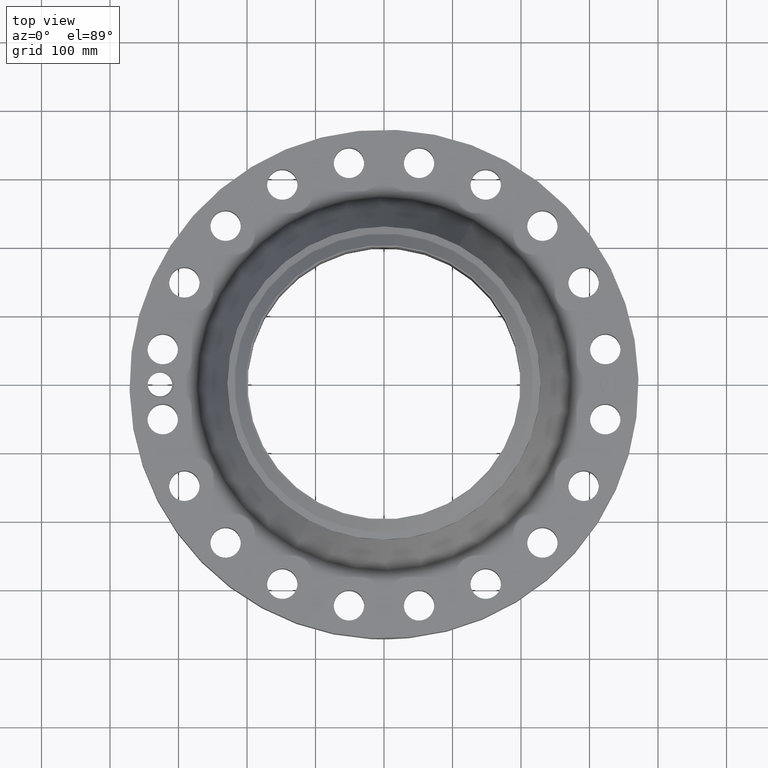
[diagram: clean part render]
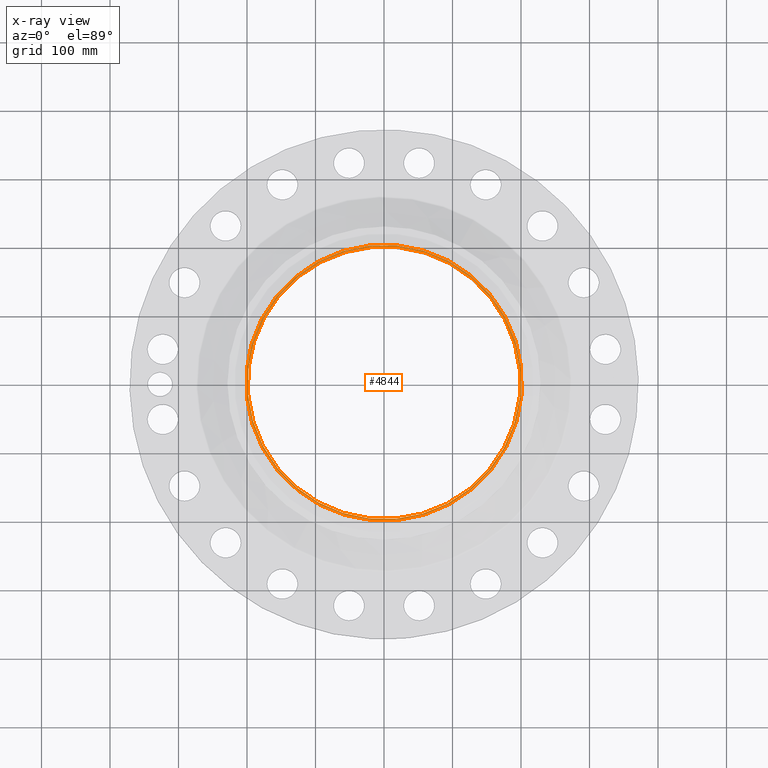
[diagram: x-ray — body ghosted, one internal face saturated and labeled with its STEP entity id]
A machine part, top view, then the same camera in x-ray: the body is ghosted and one INTERNAL B-rep face — a face not visible from any outside direction — is saturated and labeled: STEP entity #4844.
In plain terms, the highlighted planar face has unit normal (0, 0, -1).
Its self-contained STEP definition (entity closure, byte-faithful):
#3642=AXIS2_PLACEMENT_3D('Circle Axis2P3D',#3640,#3641,$) ;
#3710=AXIS2_PLACEMENT_3D('Circle Axis2P3D',#3708,#3709,$) ;
#4820=AXIS2_PLACEMENT_3D('Plane Axis2P3D',#4817,#4818,#4819) ;
#4824=AXIS2_PLACEMENT_3D('Circle Axis2P3D',#4822,#4823,$) ;
#4833=AXIS2_PLACEMENT_3D('Circle Axis2P3D',#4831,#4832,$) ;
#3640=CARTESIAN_POINT('Axis2P3D Location',(0.,0.,7.50000000003)) ;
#3644=CARTESIAN_POINT('Vertex',(3.76061392483,6.8837576155,7.50000000003)) ;
#3646=CARTESIAN_POINT('Vertex',(-3.76061392483,-6.8837576155,7.50000000003)) ;
#3708=CARTESIAN_POINT('Axis2P3D Location',(0.,0.,7.50000000003)) ;
#4817=CARTESIAN_POINT('Axis2P3D Location',(0.,9.00000000004,7.50000000003)) ;
#4822=CARTESIAN_POINT('Axis2P3D Location',(0.,0.,7.50000000003)) ;
#4826=CARTESIAN_POINT('Vertex',(3.79836396724,-6.95285860462,7.50000000003)) ;
#4828=CARTESIAN_POINT('Vertex',(-3.79836396724,6.95285860462,7.50000000003)) ;
#4831=CARTESIAN_POINT('Axis2P3D Location',(0.,0.,7.50000000003)) ;
#3641=DIRECTION('Axis2P3D Direction',(0.,0.,-0.0393700787402)) ;
#3709=DIRECTION('Axis2P3D Direction',(0.,0.,-0.0393700787402)) ;
#4818=DIRECTION('Axis2P3D Direction',(0.,0.,-0.0393700787402)) ;
#4819=DIRECTION('Axis2P3D XDirection',(0.0393700787402,0.,0.)) ;
#4823=DIRECTION('Axis2P3D Direction',(0.,0.,-0.0393700787402)) ;
#4832=DIRECTION('Axis2P3D Direction',(0.,0.,-0.0393700787402)) ;
#4837=ORIENTED_EDGE('',*,*,#4830,.T.) ;
#4838=ORIENTED_EDGE('',*,*,#4835,.T.) ;
#4841=ORIENTED_EDGE('',*,*,#3712,.T.) ;
#4842=ORIENTED_EDGE('',*,*,#3648,.T.) ;
#4843=FACE_BOUND('',#4840,.T.) ;
#4844=ADVANCED_FACE('PartBody',(#4839,#4843),#4821,.F.) ;
#3643=CIRCLE('generated circle',#3642,7.84400000003) ;
#3711=CIRCLE('generated circle',#3710,7.84400000003) ;
#4825=CIRCLE('generated circle',#4824,7.92274015751) ;
#4834=CIRCLE('generated circle',#4833,7.92274015751) ;
#3648=EDGE_CURVE('',#3645,#3647,#3643,.T.) ;
#3712=EDGE_CURVE('',#3647,#3645,#3711,.T.) ;
#4830=EDGE_CURVE('',#4827,#4829,#4825,.F.) ;
#4835=EDGE_CURVE('',#4829,#4827,#4834,.F.) ;
#4836=EDGE_LOOP('',(#4837,#4838)) ;
#4840=EDGE_LOOP('',(#4841,#4842)) ;
#4839=FACE_OUTER_BOUND('',#4836,.T.) ;
#4821=PLANE('',#4820) ;
#3645=VERTEX_POINT('',#3644) ;
#3647=VERTEX_POINT('',#3646) ;
#4827=VERTEX_POINT('',#4826) ;
#4829=VERTEX_POINT('',#4828) ;